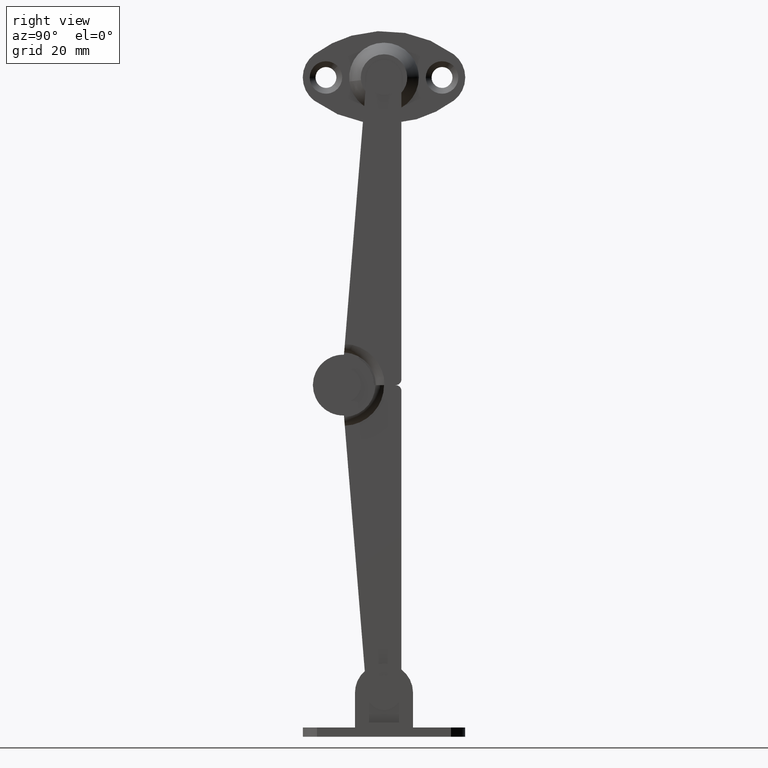
[diagram: clean part render]
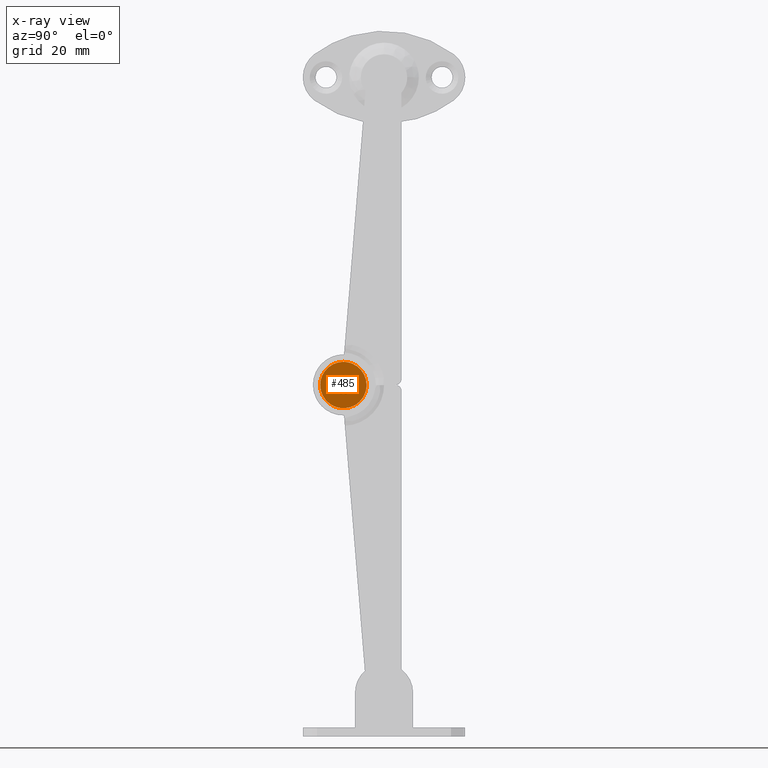
[diagram: x-ray — body ghosted, one internal face saturated and labeled with its STEP entity id]
A machine part, right view, then the same camera in x-ray: the body is ghosted and one INTERNAL B-rep face — a face not visible from any outside direction — is saturated and labeled: STEP entity #485.
In plain terms, the highlighted face is a freeform B-spline surface patch.
Its self-contained STEP definition (entity closure, byte-faithful):
#82=CARTESIAN_POINT('',(5.0,-1.145333999211579,53.968598509857067));
#83=VERTEX_POINT('',#82);
#89=CARTESIAN_POINT('',(5.0,0.0,54.499985000000002));
#90=VERTEX_POINT('',#89);
#91=CARTESIAN_POINT('',(5.0,-1.145333999211579,53.968598509857067));
#92=CARTESIAN_POINT('',(4.999999999999993,-0.996584311831270,54.145121214439158));
#93=CARTESIAN_POINT('',(5.000000000000020,-0.637844654055367,54.410113935616657));
#94=CARTESIAN_POINT('',(4.999999999999990,-0.203665112467362,54.500202199367230));
#95=CARTESIAN_POINT('',(5.0,0.0,54.499985000000002));
#96=B_SPLINE_CURVE_WITH_KNOTS('',3,(#91,#92,#93,#94,#95),.UNSPECIFIED.,.F.,.U.,(4,1,4),(0.000000083461063,0.692330017265534,1.303242752814405),.UNSPECIFIED.);
#97=EDGE_CURVE('',#83,#90,#96,.T.);
#99=CARTESIAN_POINT('',(4.999999999999999,1.499999999997309,52.999982158927267));
#100=VERTEX_POINT('',#99);
#101=CARTESIAN_POINT('',(5.0,0.0,54.499985000000002));
#102=CARTESIAN_POINT('',(4.999999999999997,0.220962565496175,54.500332167514813));
#103=CARTESIAN_POINT('',(4.999999999999999,0.576526815552121,54.419879122461928));
#104=CARTESIAN_POINT('',(5.000000000000007,0.960574553473782,54.169929746678307));
#105=CARTESIAN_POINT('',(4.999999999999993,1.215656281020968,53.901999451657147));
#106=CARTESIAN_POINT('',(5.000000000000007,1.433975317020700,53.527557288707840));
#107=CARTESIAN_POINT('',(4.999999999999995,1.500209396137333,53.196360512317639));
#108=CARTESIAN_POINT('',(4.999999999999999,1.499999999997309,52.999982158927267));
#109=B_SPLINE_CURVE_WITH_KNOTS('',3,(#101,#102,#103,#104,#105,#106,#107,#108),.UNSPECIFIED.,.F.,.U.,(4,1,1,1,1,4),(0.000000284000585,0.662700729033595,1.067679566561609,1.362179139888532,1.767191486422487,2.356255217872321),.UNSPECIFIED.);
#110=EDGE_CURVE('',#90,#100,#109,.T.);
#112=CARTESIAN_POINT('',(5.0,0.0,51.499985000000002));
#113=VERTEX_POINT('',#112);
#114=CARTESIAN_POINT('',(4.999999999999999,1.499999999997309,52.999982158927267));
#115=CARTESIAN_POINT('',(5.0,1.500114871608573,52.828165281277030));
#116=CARTESIAN_POINT('',(5.000000000000008,1.448823232000396,52.533714951609603));
#117=CARTESIAN_POINT('',(4.999999999999995,1.243142090105185,52.125060727689707));
#118=CARTESIAN_POINT('',(4.999999999999991,0.938678819629678,51.797200243233917));
#119=CARTESIAN_POINT('',(5.000000000000046,0.503081407832376,51.557525823306143));
#120=CARTESIAN_POINT('',(4.999999999999962,0.171818613334187,51.499884241271687));
#121=CARTESIAN_POINT('',(5.0,0.0,51.499985000000002));
#122=B_SPLINE_CURVE_WITH_KNOTS('',3,(#114,#115,#116,#117,#118,#119,#120,#121),.UNSPECIFIED.,.F.,.U.,(4,1,1,1,1,4),(0.000000287886122,0.515426608276366,0.883616340108865,1.362177283184197,1.840825693333723,2.356252015241231),.UNSPECIFIED.);
#123=EDGE_CURVE('',#100,#113,#122,.T.);
#125=CARTESIAN_POINT('',(5.0,-1.032531527913537,51.911924102816492));
#126=VERTEX_POINT('',#125);
#127=CARTESIAN_POINT('',(5.0,0.0,51.499985000000002));
#128=CARTESIAN_POINT('',(5.0,-0.154215015580652,51.499932980765500));
#129=CARTESIAN_POINT('',(5.000000000000001,-0.533825878978695,51.558988857204142));
#130=CARTESIAN_POINT('',(4.999999999999998,-0.869235768445183,51.756454861441433));
#131=CARTESIAN_POINT('',(5.0,-1.032531527913537,51.911924102816492));
#132=B_SPLINE_CURVE_WITH_KNOTS('',3,(#127,#128,#129,#130,#131),.UNSPECIFIED.,.F.,.U.,(4,1,4),(0.000000055590335,0.462664643788061,1.138853982537878),.UNSPECIFIED.);
#133=EDGE_CURVE('',#113,#126,#132,.T.);
#212=CARTESIAN_POINT('',(5.0,-1.499999999997310,52.999987841072723));
#213=VERTEX_POINT('',#212);
#214=CARTESIAN_POINT('',(5.0,-1.032531527913537,51.911924102816492));
#215=CARTESIAN_POINT('',(5.000000000000002,-1.133750668482064,52.007917014885606));
#216=CARTESIAN_POINT('',(4.999999999999994,-1.285163607997523,52.198334177799147));
#217=CARTESIAN_POINT('',(5.000000000000008,-1.455623689041897,52.568903073585972));
#218=CARTESIAN_POINT('',(4.999999999999980,-1.500113303981922,52.835116923337672));
#219=CARTESIAN_POINT('',(5.0,-1.499999999997310,52.999987841072723));
#220=B_SPLINE_CURVE_WITH_KNOTS('',3,(#214,#215,#216,#217,#218,#219),.UNSPECIFIED.,.F.,.U.,(4,1,1,4),(0.000000077544394,0.418491514664066,0.722828645369218,1.217402114601578),.UNSPECIFIED.);
#221=EDGE_CURVE('',#126,#213,#220,.T.);
#223=CARTESIAN_POINT('',(5.0,-1.499999999997310,52.999987841072723));
#224=CARTESIAN_POINT('',(5.000000000000004,-1.500099462102420,53.164533525286608));
#225=CARTESIAN_POINT('',(4.999999999999993,-1.441646345615523,53.515461465230892));
#226=CARTESIAN_POINT('',(5.000000000000007,-1.265878739232850,53.826312144825479));
#227=CARTESIAN_POINT('',(5.0,-1.145333999211579,53.968598509857067));
#228=B_SPLINE_CURVE_WITH_KNOTS('',3,(#223,#224,#225,#226,#227),.UNSPECIFIED.,.F.,.U.,(4,1,4),(0.000000047973085,0.493615563798132,1.053010571155514),.UNSPECIFIED.);
#229=EDGE_CURVE('',#213,#83,#228,.T.);
#275=CARTESIAN_POINT('',(5.0,3.054222939481941,55.582953386176357));
#276=VERTEX_POINT('',#275);
#282=CARTESIAN_POINT('',(5.0,0.0,56.999985000000002));
#283=VERTEX_POINT('',#282);
#284=CARTESIAN_POINT('',(5.0,3.054222939481941,55.582953386176357));
#285=CARTESIAN_POINT('',(5.000000000000004,2.855571367267051,55.817944979323649));
#286=CARTESIAN_POINT('',(5.000000000000004,2.443528517957051,56.204303219049557));
#287=CARTESIAN_POINT('',(4.999999999999992,1.789718331080541,56.598864216886739));
#288=CARTESIAN_POINT('',(5.000000000000011,0.995397321260822,56.910007646924662));
#289=CARTESIAN_POINT('',(4.999999999999992,0.398230893452183,57.000191728753123));
#290=CARTESIAN_POINT('',(5.0,0.0,56.999985000000002));
#291=B_SPLINE_CURVE_WITH_KNOTS('',3,(#284,#285,#286,#287,#288,#289,#290),.UNSPECIFIED.,.F.,.U.,(4,1,1,1,4),(0.000000052577137,0.923109792727088,1.683341761886888,2.280619679628432,3.475233420319476),.UNSPECIFIED.);
#292=EDGE_CURVE('',#276,#283,#291,.T.);
#294=CARTESIAN_POINT('',(4.999999999999999,-3.999999999999618,52.999983251711257));
#295=VERTEX_POINT('',#294);
#296=CARTESIAN_POINT('',(5.0,0.0,56.999985000000002));
#297=CARTESIAN_POINT('',(5.0,-0.310887972602646,57.000040507599607));
#298=CARTESIAN_POINT('',(4.999999999999995,-0.916271922557943,56.929062396512712));
#299=CARTESIAN_POINT('',(5.000000000000004,-1.737785502957479,56.635119602537692));
#300=CARTESIAN_POINT('',(5.000000000000013,-2.549717662823140,56.134930101239199));
#301=CARTESIAN_POINT('',(4.999999999999968,-3.219719496875289,55.448349070539308));
#302=CARTESIAN_POINT('',(5.000000000000035,-3.649643035352650,54.689075883962509));
#303=CARTESIAN_POINT('',(5.000000000000021,-3.926579768190813,53.899849523821523));
#304=CARTESIAN_POINT('',(4.999999999999930,-4.000129477092086,53.359975722649722));
#305=CARTESIAN_POINT('',(4.999999999999999,-3.999999999999618,52.999983251711257));
#306=B_SPLINE_CURVE_WITH_KNOTS('',3,(#296,#297,#298,#299,#300,#301,#302,#303,#304,#305),.UNSPECIFIED.,.F.,.U.,(4,1,1,1,1,1,1,4),(0.000000149489497,0.932656109280722,1.816246642577265,2.601666594625379,3.779734480444685,4.663331226613943,5.203301713009794,6.283225716885017),.UNSPECIFIED.);
#307=EDGE_CURVE('',#283,#295,#306,.T.);
#309=CARTESIAN_POINT('',(5.0,0.0,48.999985000000002));
#310=VERTEX_POINT('',#309);
#311=CARTESIAN_POINT('',(4.999999999999999,-3.999999999999618,52.999983251711257));
#312=CARTESIAN_POINT('',(4.999999999999997,-4.000081174610096,52.656372106452217));
#313=CARTESIAN_POINT('',(5.000000000000006,-3.906709330609250,51.936441998921687));
#314=CARTESIAN_POINT('',(5.0,-3.521720550755213,51.022686983317413));
#315=CARTESIAN_POINT('',(4.999999999999985,-3.022057263888564,50.349272706382642));
#316=CARTESIAN_POINT('',(4.999999999999996,-2.475479402497157,49.828851922108960));
#317=CARTESIAN_POINT('',(4.999999999999991,-1.771769244887550,49.370920170728411));
#318=CARTESIAN_POINT('',(5.000000000000017,-0.899934743144812,49.065035009540047));
#319=CARTESIAN_POINT('',(4.999999999999946,-0.278152968471305,48.999957887358377));
#320=CARTESIAN_POINT('',(5.0,0.0,48.999985000000002));
#321=B_SPLINE_CURVE_WITH_KNOTS('',3,(#311,#312,#313,#314,#315,#316,#317,#318,#319,#320),.UNSPECIFIED.,.F.,.U.,(4,1,1,1,1,1,1,4),(0.000000150114766,1.030829227691855,2.159867648805392,2.945292998193767,3.534276929936010,4.417884660398198,5.448755297742420,6.283223746143714),.UNSPECIFIED.);
#322=EDGE_CURVE('',#295,#310,#321,.T.);
#324=CARTESIAN_POINT('',(5.0,2.753417901783275,50.098487737145213));
#325=VERTEX_POINT('',#324);
#326=CARTESIAN_POINT('',(5.0,0.0,48.999985000000002));
#327=CARTESIAN_POINT('',(4.999999999999998,0.411258370716756,48.999800108354087));
#328=CARTESIAN_POINT('',(5.000000000000019,1.154568494263924,49.115636899560883));
#329=CARTESIAN_POINT('',(4.999999999999979,2.080544762632405,49.543751725560192));
#330=CARTESIAN_POINT('',(5.000000000000010,2.558390633173511,49.913379824158227));
#331=CARTESIAN_POINT('',(5.0,2.753417901783275,50.098487737145213));
#332=B_SPLINE_CURVE_WITH_KNOTS('',3,(#326,#327,#328,#329,#330,#331),.UNSPECIFIED.,.F.,.U.,(4,1,1,4),(0.000000034214148,1.233745792575699,2.230216118167559,3.036890400137443),.UNSPECIFIED.);
#333=EDGE_CURVE('',#310,#325,#332,.T.);
#419=CARTESIAN_POINT('',(5.0,3.999999999999618,52.999986748288677));
#420=VERTEX_POINT('',#419);
#421=CARTESIAN_POINT('',(5.0,2.753417901783275,50.098487737145213));
#422=CARTESIAN_POINT('',(4.999999999999997,3.097165694711724,50.424129201987327));
#423=CARTESIAN_POINT('',(5.000000000000003,3.493407932082323,50.964079156466752));
#424=CARTESIAN_POINT('',(4.999999999999996,3.902582619731072,51.968740461283481));
#425=CARTESIAN_POINT('',(5.000000000000022,4.000238587381575,52.577250769761953));
#426=CARTESIAN_POINT('',(5.0,3.999999999999618,52.999986748288677));
#427=B_SPLINE_CURVE_WITH_KNOTS('',3,(#421,#422,#423,#424,#425,#426),.UNSPECIFIED.,.F.,.U.,(4,1,1,4),(0.000000042317035,1.420286497879653,1.978232935425663,3.246335868234109),.UNSPECIFIED.);
#428=EDGE_CURVE('',#325,#420,#427,.T.);
#430=CARTESIAN_POINT('',(5.0,3.999999999999618,52.999986748288677));
#431=CARTESIAN_POINT('',(4.999999999999980,4.000267488555213,53.438763779163800));
#432=CARTESIAN_POINT('',(5.000000000000043,3.844394847232228,54.374569643193283));
#433=CARTESIAN_POINT('',(4.999999999999975,3.375686312030656,55.203510702003307));
#434=CARTESIAN_POINT('',(5.0,3.054222939481941,55.582953386176357));
#435=B_SPLINE_CURVE_WITH_KNOTS('',3,(#430,#431,#432,#433,#434),.UNSPECIFIED.,.F.,.U.,(4,1,4),(0.000000013507015,1.316265998194084,2.808033453870934),.UNSPECIFIED.);
#436=EDGE_CURVE('',#420,#276,#435,.T.);
#464=CARTESIAN_POINT('',(5.0,-4.399599984494027,57.399584759199627));
#465=CARTESIAN_POINT('',(5.0,4.399600199070749,57.399584759199627));
#466=CARTESIAN_POINT('',(5.0,-4.399599984494027,48.600384811646940));
#467=CARTESIAN_POINT('',(5.0,4.399600199070749,48.600384811646940));
#468=B_SPLINE_SURFACE_WITH_KNOTS('',1,1,((#464,#466),(#465,#467)),.UNSPECIFIED.,.F.,.F.,.U.,(2,2),(2,2),(0.0,8.799200183564775),(0.0,8.799199947552687),.UNSPECIFIED.);
#469=ORIENTED_EDGE('',*,*,#292,.F.);
#470=ORIENTED_EDGE('',*,*,#436,.F.);
#471=ORIENTED_EDGE('',*,*,#428,.F.);
#472=ORIENTED_EDGE('',*,*,#333,.F.);
#473=ORIENTED_EDGE('',*,*,#322,.F.);
#474=ORIENTED_EDGE('',*,*,#307,.F.);
#475=EDGE_LOOP('',(#469,#470,#471,#472,#473,#474));
#476=FACE_OUTER_BOUND('',#475,.T.);
#477=ORIENTED_EDGE('',*,*,#110,.F.);
#478=ORIENTED_EDGE('',*,*,#97,.F.);
#479=ORIENTED_EDGE('',*,*,#229,.F.);
#480=ORIENTED_EDGE('',*,*,#221,.F.);
#481=ORIENTED_EDGE('',*,*,#133,.F.);
#482=ORIENTED_EDGE('',*,*,#123,.F.);
#483=EDGE_LOOP('',(#477,#478,#479,#480,#481,#482));
#484=FACE_BOUND('',#483,.T.);
#485=ADVANCED_FACE('',(#476,#484),#468,.T.);